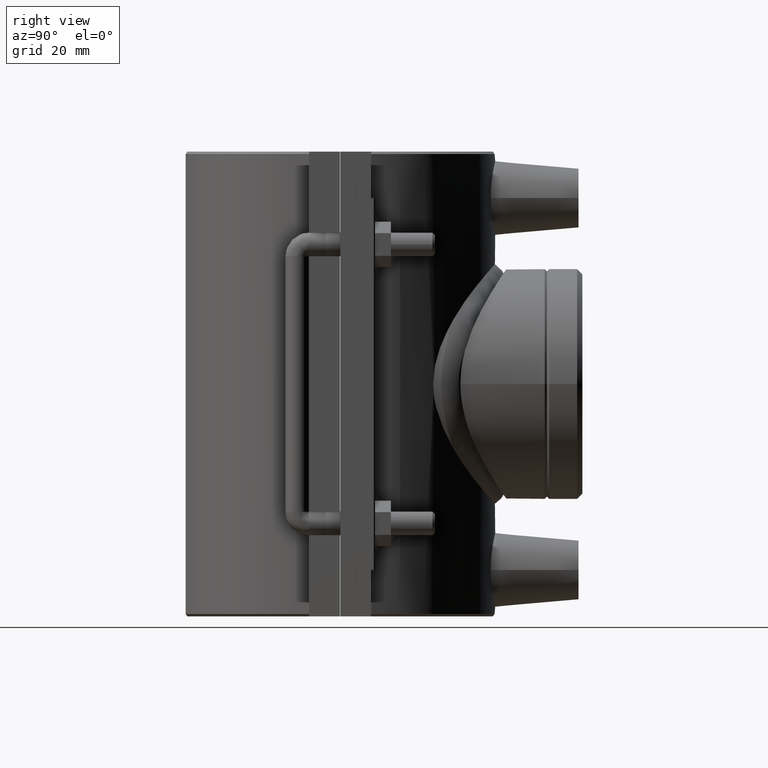
[diagram: clean part render]
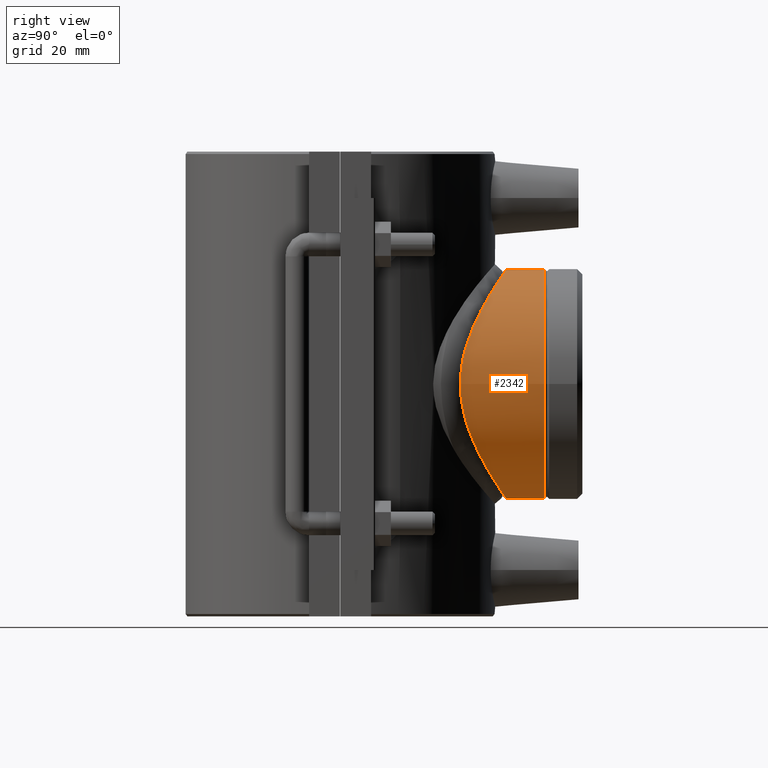
[diagram: same view with one face highlighted and labeled with its STEP entity id]
A machine part, right view. The second image highlights one B-rep face of the part: STEP entity #2342.
In plain terms, the highlighted cylindrical surface (bore or boss wall) has radius 29.1492 mm, axis along (0, -1, 0).
Its self-contained STEP definition (entity closure, byte-faithful):
#75=CYLINDRICAL_SURFACE('',#2542,29.14925);
#127=FACE_BOUND('',#457,.T.);
#163=B_SPLINE_CURVE_WITH_KNOTS('',3,(#4318,#4319,#4320,#4321,#4322,#4323),
 .UNSPECIFIED.,.F.,.F.,(4,2,4),(0.,0.577997227908711,0.857383446740192),
 .UNSPECIFIED.);
#164=B_SPLINE_CURVE_WITH_KNOTS('',3,(#4325,#4326,#4327,#4328,#4329,#4330),
 .UNSPECIFIED.,.F.,.F.,(4,2,4),(-0.857383446712973,-0.57799722790871,0.),
 .UNSPECIFIED.);
#165=B_SPLINE_CURVE_WITH_KNOTS('',3,(#4332,#4333,#4334,#4335,#4336,#4337,
#4338,#4339,#4340,#4341,#4342,#4343,#4344,#4345,#4346,#4347,#4348,#4349,
#4350,#4351,#4352,#4353,#4354,#4355,#4356,#4357,#4358,#4359,#4360,#4361),
 .UNSPECIFIED.,.F.,.F.,(4,2,2,2,2,2,2,2,2,2,2,2,2,2,4),(10.0440088741424,
10.3426198832568,10.9206171111655,11.4986143390742,12.0689452895955,12.6392762401167,
13.2096071906379,13.7799381411591,14.3502690916803,14.9206000422015,15.4909309927227,
16.0612619432439,16.6392591711527,17.2172563990614,17.5158674081747),
 .UNSPECIFIED.);
#166=B_SPLINE_CURVE_WITH_KNOTS('',3,(#4363,#4364,#4365,#4366,#4367,#4368,
#4369,#4370,#4371,#4372),.UNSPECIFIED.,.F.,.F.,(4,2,2,2,4),(8.32924198072642,
8.60862819953068,9.18662542743939,9.7646226553481,10.0440088741535),
 .UNSPECIFIED.);
#167=B_SPLINE_CURVE_WITH_KNOTS('',3,(#4373,#4374,#4375,#4376,#4377,#4378,
#4379,#4380,#4381,#4382,#4383,#4384,#4385,#4386,#4387,#4388,#4389,#4390,
#4391,#4392,#4393,#4394,#4395,#4396,#4397,#4398,#4399,#4400,#4401,#4402),
 .UNSPECIFIED.,.F.,.F.,(4,2,2,2,2,2,2,2,2,2,2,2,2,2,4),(0.857383446710632,
1.15599445581742,1.73399168372613,2.31198891163484,2.88231986215606,3.45265081267727,
4.02298176319848,4.5933127137197,5.16364366424091,5.73397461476212,6.30430556528334,
6.87463651580455,7.45263374371326,8.03063097162197,8.32924198072866),
 .UNSPECIFIED.);
#278=FACE_OUTER_BOUND('',#456,.T.);
#456=EDGE_LOOP('',(#1992,#1993,#1994,#1995,#1996));
#457=EDGE_LOOP('',(#1997));
#951=CIRCLE('',#2541,29.14925);
#1156=VERTEX_POINT('',#4313);
#1157=VERTEX_POINT('',#4316);
#1158=VERTEX_POINT('',#4317);
#1159=VERTEX_POINT('',#4324);
#1160=VERTEX_POINT('',#4331);
#1161=VERTEX_POINT('',#4362);
#1452=EDGE_CURVE('',#1156,#1156,#951,.T.);
#1453=EDGE_CURVE('',#1157,#1158,#163,.T.);
#1454=EDGE_CURVE('',#1159,#1157,#164,.T.);
#1455=EDGE_CURVE('',#1160,#1159,#165,.T.);
#1456=EDGE_CURVE('',#1161,#1160,#166,.T.);
#1457=EDGE_CURVE('',#1158,#1161,#167,.T.);
#1992=ORIENTED_EDGE('',*,*,#1453,.F.);
#1993=ORIENTED_EDGE('',*,*,#1454,.F.);
#1994=ORIENTED_EDGE('',*,*,#1455,.F.);
#1995=ORIENTED_EDGE('',*,*,#1456,.F.);
#1996=ORIENTED_EDGE('',*,*,#1457,.F.);
#1997=ORIENTED_EDGE('',*,*,#1452,.F.);
#2342=ADVANCED_FACE('',(#278,#127),#75,.T.);
#2541=AXIS2_PLACEMENT_3D('',#4314,#3074,#3075);
#2542=AXIS2_PLACEMENT_3D('',#4315,#3076,#3077);
#3074=DIRECTION('center_axis',(0.,1.,0.));
#3075=DIRECTION('ref_axis',(-1.,0.,0.));
#3076=DIRECTION('center_axis',(0.,-1.,0.));
#3077=DIRECTION('ref_axis',(1.,0.,0.));
#4313=CARTESIAN_POINT('',(29.14925,51.95,-3.5697535710046E-15));
#4314=CARTESIAN_POINT('Origin',(0.,51.95,0.));
#4315=CARTESIAN_POINT('Origin',(0.,61.5,0.));
#4316=CARTESIAN_POINT('',(-29.14925,30.5287622486976,5.55111512312578E-16));
#4317=CARTESIAN_POINT('',(-27.8752037964565,31.6963264954477,-8.52360187177455));
#4318=CARTESIAN_POINT('Ctrl Pts',(-29.14925,30.5287622486976,1.66533453693773E-15));
#4319=CARTESIAN_POINT('Ctrl Pts',(-29.14925,30.5287622486976,-1.92665742636237));
#4320=CARTESIAN_POINT('Ctrl Pts',(-28.9557788246744,30.7168248593583,-3.87810996757286));
#4321=CARTESIAN_POINT('Ctrl Pts',(-28.3817338972895,31.2446131290433,-6.71143547549052));
#4322=CARTESIAN_POINT('Ctrl Pts',(-28.1498640808416,31.4547776395218,-7.62536524397277));
#4323=CARTESIAN_POINT('Ctrl Pts',(-27.8752037964565,31.6963264954477,-8.52360187177455));
#4324=CARTESIAN_POINT('',(-27.8752037964759,31.6963264954306,8.52360187171115));
#4325=CARTESIAN_POINT('Ctrl Pts',(-27.8752037964759,31.6963264954306,8.52360187171115));
#4326=CARTESIAN_POINT('Ctrl Pts',(-28.149864080832,31.45477763953,7.62536524399688));
#4327=CARTESIAN_POINT('Ctrl Pts',(-28.3817338973077,31.2446131290266,6.71143547540058));
#4328=CARTESIAN_POINT('Ctrl Pts',(-28.9557788246744,30.7168248593583,3.87810996757287));
#4329=CARTESIAN_POINT('Ctrl Pts',(-29.14925,30.5287622486976,1.92665742636237));
#4330=CARTESIAN_POINT('Ctrl Pts',(-29.14925,30.5287622486976,-1.66533453693773E-15));
#4331=CARTESIAN_POINT('',(27.8752037964791,31.6963264954278,8.52360187170065));
#4332=CARTESIAN_POINT('Ctrl Pts',(27.8752037964791,31.6963264954278,8.52360187170065));
#4333=CARTESIAN_POINT('Ctrl Pts',(27.5816439171617,31.95449652228,9.48364688384628));
#4334=CARTESIAN_POINT('Ctrl Pts',(27.2391927131766,32.2484543574058,10.4257791660695));
#4335=CARTESIAN_POINT('Ctrl Pts',(26.1015306832584,33.1864321144095,13.1188728985756));
#4336=CARTESIAN_POINT('Ctrl Pts',(25.1800072399044,33.9014196491203,14.8048309018203));
#4337=CARTESIAN_POINT('Ctrl Pts',(23.0687605096651,35.371899967079,17.9178143594984));
#4338=CARTESIAN_POINT('Ctrl Pts',(21.8784278477471,36.1265239525593,19.3448368352568));
#4339=CARTESIAN_POINT('Ctrl Pts',(19.3616390019026,37.534820434736,21.8616256811014));
#4340=CARTESIAN_POINT('Ctrl Pts',(17.943798522329,38.2434077732966,23.0487042078363));
#4341=CARTESIAN_POINT('Ctrl Pts',(14.8300295900951,39.5551307146292,25.1653113178102));
#4342=CARTESIAN_POINT('Ctrl Pts',(13.1338867738131,40.1575684829815,26.0949569515752));
#4343=CARTESIAN_POINT('Ctrl Pts',(9.55826466831969,41.1554234858751,27.6058937416622));
#4344=CARTESIAN_POINT('Ctrl Pts',(7.67491469776572,41.551338582632,28.1884338002598));
#4345=CARTESIAN_POINT('Ctrl Pts',(3.84638695360917,42.0787756601336,28.9602731886829));
#4346=CARTESIAN_POINT('Ctrl Pts',(1.90110316840405,42.21,29.14925));
#4347=CARTESIAN_POINT('Ctrl Pts',(-1.90110316840403,42.21,29.14925));
#4348=CARTESIAN_POINT('Ctrl Pts',(-3.84638695360914,42.0787756601336,28.9602731886829));
#4349=CARTESIAN_POINT('Ctrl Pts',(-7.67491469776569,41.551338582632,28.1884338002598));
#4350=CARTESIAN_POINT('Ctrl Pts',(-9.55826466831967,41.1554234858751,27.6058937416622));
#4351=CARTESIAN_POINT('Ctrl Pts',(-13.133886773813,40.1575684829815,26.0949569515752));
#4352=CARTESIAN_POINT('Ctrl Pts',(-14.8300295900951,39.5551307146293,25.1653113178102));
#4353=CARTESIAN_POINT('Ctrl Pts',(-17.943798522329,38.2434077732966,23.0487042078363));
#4354=CARTESIAN_POINT('Ctrl Pts',(-19.3616390019026,37.5348204347361,21.8616256811014));
#4355=CARTESIAN_POINT('Ctrl Pts',(-21.8784278477471,36.1265239525593,19.3448368352568));
#4356=CARTESIAN_POINT('Ctrl Pts',(-23.068760509665,35.3718999670791,17.9178143594984));
#4357=CARTESIAN_POINT('Ctrl Pts',(-25.1800072399044,33.9014196491203,14.8048309018203));
#4358=CARTESIAN_POINT('Ctrl Pts',(-26.1015306832584,33.1864321144095,13.1188728985756));
#4359=CARTESIAN_POINT('Ctrl Pts',(-27.2391927131752,32.2484543574069,10.4257791660728));
#4360=CARTESIAN_POINT('Ctrl Pts',(-27.5816439171592,31.9544965222822,9.48364688385315));
#4361=CARTESIAN_POINT('Ctrl Pts',(-27.8752037964759,31.6963264954306,8.52360187171115));
#4362=CARTESIAN_POINT('',(27.8752037964562,31.696326495448,-8.52360187177559));
#4363=CARTESIAN_POINT('Ctrl Pts',(27.8752037964562,31.696326495448,-8.52360187177558));
#4364=CARTESIAN_POINT('Ctrl Pts',(28.1498640808142,31.4547776395459,-7.62536524406232));
#4365=CARTESIAN_POINT('Ctrl Pts',(28.3817338973077,31.2446131290266,-6.71143547540058));
#4366=CARTESIAN_POINT('Ctrl Pts',(28.9557788246744,30.7168248593583,-3.87810996757288));
#4367=CARTESIAN_POINT('Ctrl Pts',(29.14925,30.5287622486976,-1.92665742636237));
#4368=CARTESIAN_POINT('Ctrl Pts',(29.14925,30.5287622486976,1.92665742636236));
#4369=CARTESIAN_POINT('Ctrl Pts',(28.9557788246744,30.7168248593583,3.87810996757285));
#4370=CARTESIAN_POINT('Ctrl Pts',(28.381733897307,31.2446131290273,6.7114354754044));
#4371=CARTESIAN_POINT('Ctrl Pts',(28.149864080836,31.4547776395264,7.62536524398243));
#4372=CARTESIAN_POINT('Ctrl Pts',(27.8752037964791,31.6963264954278,8.52360187170065));
#4373=CARTESIAN_POINT('Ctrl Pts',(-27.8752037964565,31.6963264954477,-8.52360187177455));
#4374=CARTESIAN_POINT('Ctrl Pts',(-27.5816439171441,31.9544965222951,-9.48364688389463));
#4375=CARTESIAN_POINT('Ctrl Pts',(-27.2391927131667,32.248454357414,-10.425779166093));
#4376=CARTESIAN_POINT('Ctrl Pts',(-26.1015306832584,33.1864321144095,-13.1188728985756));
#4377=CARTESIAN_POINT('Ctrl Pts',(-25.1800072399044,33.9014196491203,-14.8048309018202));
#4378=CARTESIAN_POINT('Ctrl Pts',(-23.0687605096651,35.371899967079,-17.9178143594984));
#4379=CARTESIAN_POINT('Ctrl Pts',(-21.8784278477471,36.1265239525593,-19.3448368352568));
#4380=CARTESIAN_POINT('Ctrl Pts',(-19.3616390019026,37.534820434736,-21.8616256811014));
#4381=CARTESIAN_POINT('Ctrl Pts',(-17.943798522329,38.2434077732966,-23.0487042078363));
#4382=CARTESIAN_POINT('Ctrl Pts',(-14.8300295900951,39.5551307146292,-25.1653113178102));
#4383=CARTESIAN_POINT('Ctrl Pts',(-13.1338867738131,40.1575684829815,-26.0949569515752));
#4384=CARTESIAN_POINT('Ctrl Pts',(-9.55826466831969,41.1554234858751,-27.6058937416622));
#4385=CARTESIAN_POINT('Ctrl Pts',(-7.67491469776571,41.551338582632,-28.1884338002598));
#4386=CARTESIAN_POINT('Ctrl Pts',(-3.84638695360916,42.0787756601336,-28.9602731886829));
#4387=CARTESIAN_POINT('Ctrl Pts',(-1.90110316840405,42.21,-29.14925));
#4388=CARTESIAN_POINT('Ctrl Pts',(1.90110316840404,42.21,-29.14925));
#4389=CARTESIAN_POINT('Ctrl Pts',(3.84638695360914,42.0787756601336,-28.9602731886829));
#4390=CARTESIAN_POINT('Ctrl Pts',(7.6749146977657,41.551338582632,-28.1884338002598));
#4391=CARTESIAN_POINT('Ctrl Pts',(9.55826466831968,41.1554234858751,-27.6058937416622));
#4392=CARTESIAN_POINT('Ctrl Pts',(13.133886773813,40.1575684829815,-26.0949569515752));
#4393=CARTESIAN_POINT('Ctrl Pts',(14.8300295900951,39.5551307146292,-25.1653113178102));
#4394=CARTESIAN_POINT('Ctrl Pts',(17.943798522329,38.2434077732966,-23.0487042078363));
#4395=CARTESIAN_POINT('Ctrl Pts',(19.3616390019026,37.534820434736,-21.8616256811014));
#4396=CARTESIAN_POINT('Ctrl Pts',(21.8784278477471,36.1265239525593,-19.3448368352568));
#4397=CARTESIAN_POINT('Ctrl Pts',(23.0687605096651,35.371899967079,-17.9178143594984));
#4398=CARTESIAN_POINT('Ctrl Pts',(25.1800072399044,33.9014196491203,-14.8048309018202));
#4399=CARTESIAN_POINT('Ctrl Pts',(26.1015306832584,33.1864321144095,-13.1188728985756));
#4400=CARTESIAN_POINT('Ctrl Pts',(27.2391927131665,32.2484543574141,-10.4257791660933));
#4401=CARTESIAN_POINT('Ctrl Pts',(27.5816439171439,31.9544965222953,-9.48364688389531));
#4402=CARTESIAN_POINT('Ctrl Pts',(27.8752037964562,31.696326495448,-8.52360187177558));